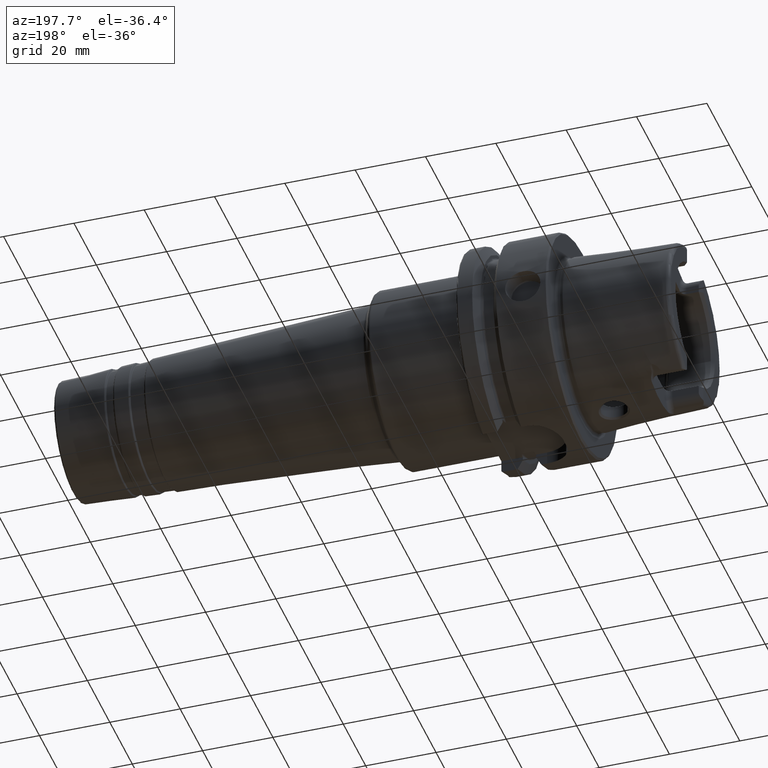
[diagram: clean part render]
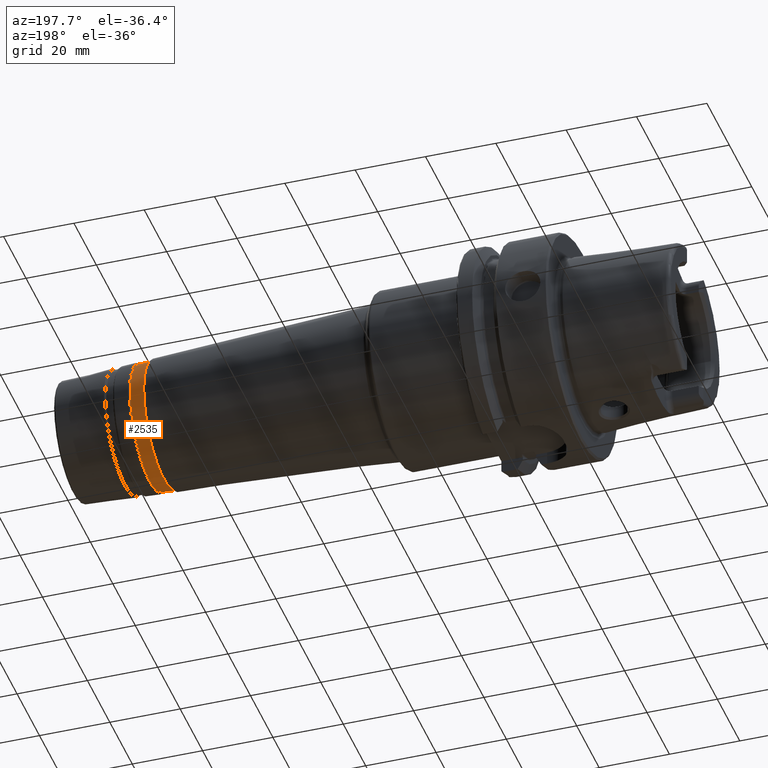
[diagram: same view with one face highlighted and labeled with its STEP entity id]
A machine part, auxiliary view. The second image highlights one B-rep face of the part: STEP entity #2535.
In plain terms, the highlighted conical surface has half-angle 3 deg.
Its self-contained STEP definition (entity closure, byte-faithful):
#226=FACE_OUTER_BOUND('',#361,.T.);
#361=EDGE_LOOP('',(#1729,#1730,#1731,#1732,#1733,#1734,#1735,#1736));
#504=LINE('',#3972,#621);
#621=VECTOR('',#3140,17.7564541224332);
#759=CIRCLE('',#2717,17.6578254456323);
#764=CIRCLE('',#2722,17.6578254456323);
#765=CIRCLE('',#2723,17.6578254456323);
#766=CIRCLE('',#2725,17.855082799234);
#767=CIRCLE('',#2726,17.855082799234);
#768=CIRCLE('',#2727,17.855082799234);
#979=VERTEX_POINT('',#3957);
#980=VERTEX_POINT('',#3958);
#984=VERTEX_POINT('',#3967);
#985=VERTEX_POINT('',#3971);
#986=VERTEX_POINT('',#3973);
#987=VERTEX_POINT('',#3975);
#1278=EDGE_CURVE('',#979,#980,#759,.T.);
#1283=EDGE_CURVE('',#980,#984,#764,.T.);
#1284=EDGE_CURVE('',#984,#979,#765,.T.);
#1285=EDGE_CURVE('',#984,#985,#504,.T.);
#1286=EDGE_CURVE('',#986,#985,#766,.T.);
#1287=EDGE_CURVE('',#987,#986,#767,.T.);
#1288=EDGE_CURVE('',#985,#987,#768,.T.);
#1729=ORIENTED_EDGE('',*,*,#1278,.F.);
#1730=ORIENTED_EDGE('',*,*,#1284,.F.);
#1731=ORIENTED_EDGE('',*,*,#1285,.T.);
#1732=ORIENTED_EDGE('',*,*,#1286,.F.);
#1733=ORIENTED_EDGE('',*,*,#1287,.F.);
#1734=ORIENTED_EDGE('',*,*,#1288,.F.);
#1735=ORIENTED_EDGE('',*,*,#1285,.F.);
#1736=ORIENTED_EDGE('',*,*,#1283,.F.);
#2506=CONICAL_SURFACE('',#2724,17.7564541224332,0.0523598775598294);
#2535=ADVANCED_FACE('',(#226),#2506,.T.);
#2717=AXIS2_PLACEMENT_3D('',#3959,#3124,#3125);
#2722=AXIS2_PLACEMENT_3D('',#3968,#3134,#3135);
#2723=AXIS2_PLACEMENT_3D('',#3969,#3136,#3137);
#2724=AXIS2_PLACEMENT_3D('',#3970,#3138,#3139);
#2725=AXIS2_PLACEMENT_3D('',#3974,#3141,#3142);
#2726=AXIS2_PLACEMENT_3D('',#3976,#3143,#3144);
#2727=AXIS2_PLACEMENT_3D('',#3977,#3145,#3146);
#3124=DIRECTION('center_axis',(1.,0.,0.));
#3125=DIRECTION('ref_axis',(0.,-1.,3.06161699786838E-17));
#3134=DIRECTION('center_axis',(1.,0.,0.));
#3135=DIRECTION('ref_axis',(0.,-1.,3.06161699786838E-17));
#3136=DIRECTION('center_axis',(1.,0.,0.));
#3137=DIRECTION('ref_axis',(0.,-1.,3.06161699786838E-17));
#3138=DIRECTION('center_axis',(-1.,0.,0.));
#3139=DIRECTION('ref_axis',(0.,1.,0.));
#3140=DIRECTION('',(-0.998629534754574,-0.0523359562429433,-6.40930612932365E-18));
#3141=DIRECTION('center_axis',(-1.,0.,0.));
#3142=DIRECTION('ref_axis',(0.,-1.,3.06161699786838E-17));
#3143=DIRECTION('center_axis',(-1.,0.,0.));
#3144=DIRECTION('ref_axis',(0.,-1.,3.06161699786838E-17));
#3145=DIRECTION('center_axis',(-1.,0.,0.));
#3146=DIRECTION('ref_axis',(0.,-1.,3.06161699786838E-17));
#3957=CARTESIAN_POINT('',(122.894281450576,17.6578254456323,-1.08122997059481E-15));
#3958=CARTESIAN_POINT('',(122.894281450576,-2.16245994118963E-15,17.6578254456323));
#3959=CARTESIAN_POINT('Origin',(122.894281450576,0.,-2.70307492648704E-15));
#3967=CARTESIAN_POINT('',(122.894281450576,-17.6578254456323,-2.16245994118963E-15));
#3968=CARTESIAN_POINT('Origin',(122.894281450576,0.,-2.70307492648704E-15));
#3969=CARTESIAN_POINT('Origin',(122.894281450576,0.,-2.70307492648704E-15));
#3970=CARTESIAN_POINT('Origin',(121.012334187209,0.,0.));
#3971=CARTESIAN_POINT('',(119.130386923842,-17.855082799234,-2.18661699985929E-15));
#3972=CARTESIAN_POINT('',(121.012334187209,-17.7564541224332,-2.17453847052446E-15));
#3973=CARTESIAN_POINT('',(119.130386923842,17.855082799234,-5.46654249964822E-15));
#3974=CARTESIAN_POINT('Origin',(119.130386923842,0.,-2.73327124982411E-15));
#3975=CARTESIAN_POINT('',(119.130386923842,-2.18661699985929E-15,17.855082799234));
#3976=CARTESIAN_POINT('Origin',(119.130386923842,0.,-2.73327124982411E-15));
#3977=CARTESIAN_POINT('Origin',(119.130386923842,0.,-2.73327124982411E-15));